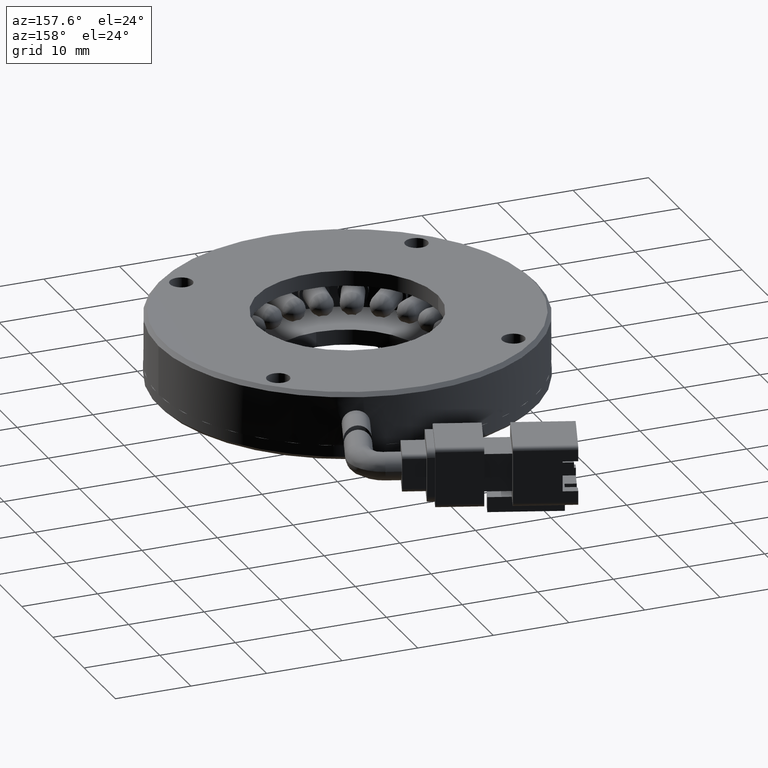
[diagram: clean part render]
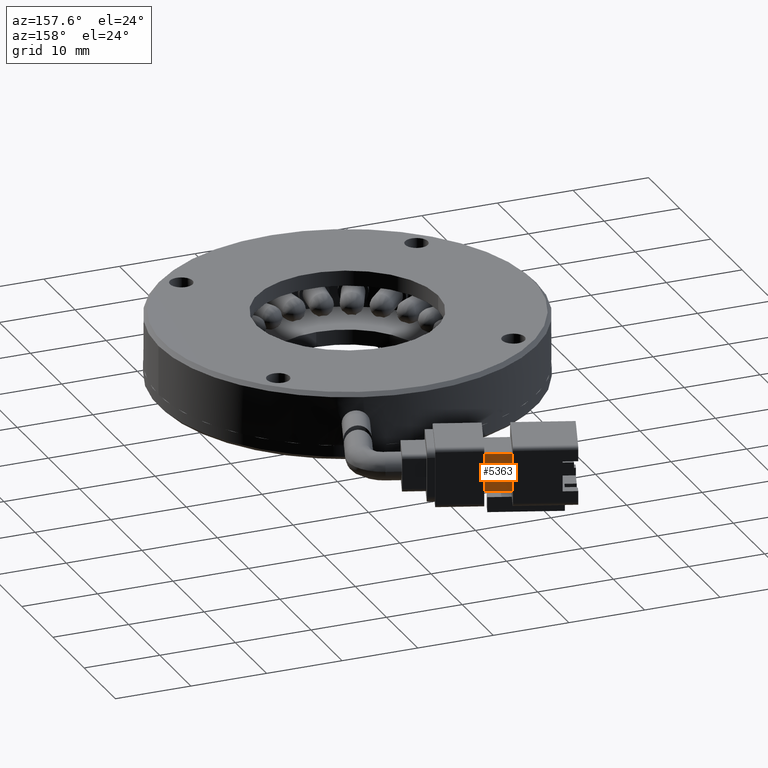
[diagram: same view with one face highlighted and labeled with its STEP entity id]
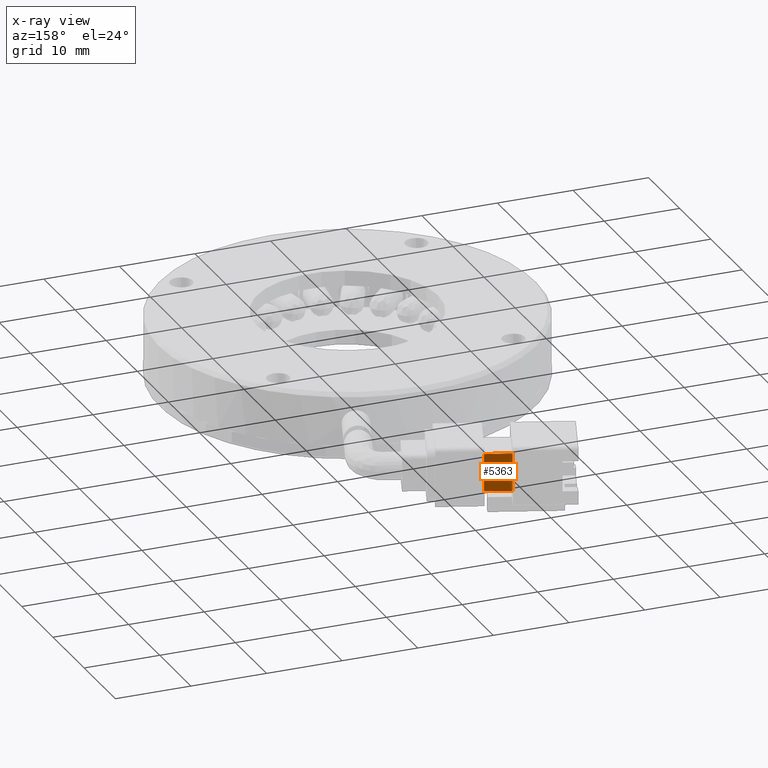
[diagram: x-ray of the same camera — body ghosted, the highlighted face saturated]
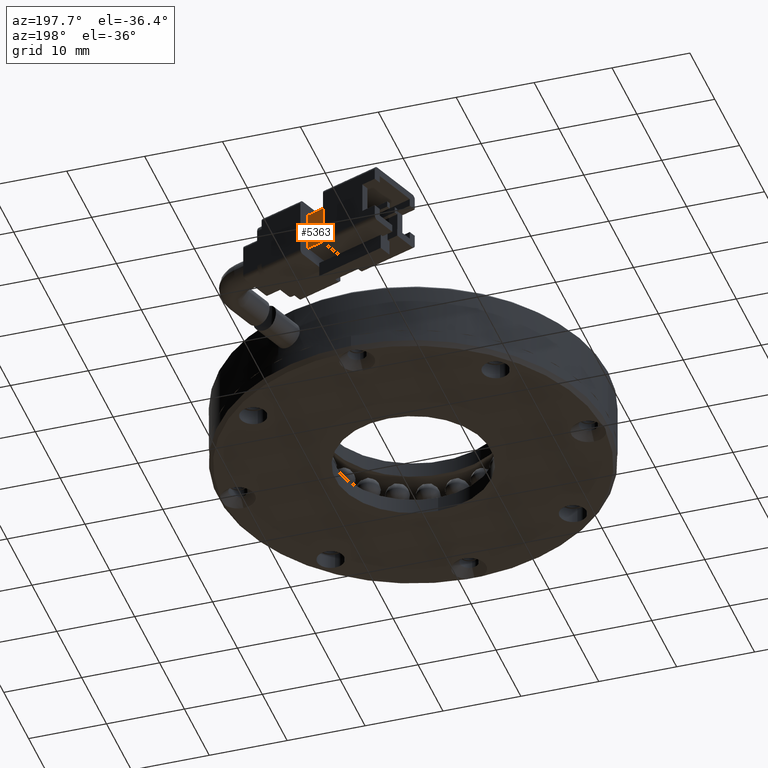
[diagram: same view with one face highlighted and labeled with its STEP entity id]
A machine part, auxiliary view. The second image highlights one B-rep face of the part: STEP entity #5363.
The next image is the same camera in x-ray: the body ghosted, the highlighted face saturated — about 0% of this face is hidden behind the body in this view.
A second angle (auxiliary view) of the same face is appended — the face is thin or edge-on in the first view.
In plain terms, the highlighted planar face has unit normal (-0.342, -0.9397, 0).
Its self-contained STEP definition (entity closure, byte-faithful):
#492 = LINE ( 'NONE', #16759, #18695 ) ;
#531 = EDGE_CURVE ( 'NONE', #4338, #12506, #739, .T. ) ;
#739 = LINE ( 'NONE', #9962, #10946 ) ;
#2364 = ORIENTED_EDGE ( 'NONE', *, *, #8719, .T. ) ;
#2950 = FACE_OUTER_BOUND ( 'NONE', #5348, .T. ) ;
#3963 = DIRECTION ( 'NONE',  ( 1.349179610668658200E-016, 4.607655505393118400E-017, 1.000000000000000000 ) ) ;
#4338 = VERTEX_POINT ( 'NONE', #6745 ) ;
#4698 = CARTESIAN_POINT ( 'NONE',  ( -124.5516112334184100, 50.81619827226441500, -2.999999999999930700 ) ) ;
#5197 = EDGE_CURVE ( 'NONE', #13494, #10506, #13334, .T. ) ;
#5348 = EDGE_LOOP ( 'NONE', ( #2364, #15798, #8304, #5422 ) ) ;
#5363 = ADVANCED_FACE ( 'NONE', ( #2950 ), #14743, .F. ) ;
#5422 = ORIENTED_EDGE ( 'NONE', *, *, #5197, .F. ) ;
#6569 = DIRECTION ( 'NONE',  ( -0.9396926207859084300, 0.3420201433256689900, 1.110223024625157000E-016 ) ) ;
#6745 = CARTESIAN_POINT ( 'NONE',  ( -124.5516112334184000, 50.81619827226444400, 2.000000000000075500 ) ) ;
#8304 = ORIENTED_EDGE ( 'NONE', *, *, #11958, .F. ) ;
#8719 = EDGE_CURVE ( 'NONE', #13494, #12506, #19511, .T. ) ;
#9962 = CARTESIAN_POINT ( 'NONE',  ( -124.5516112334183700, 50.81619827226445800, -3.999999999999934300 ) ) ;
#10506 = VERTEX_POINT ( 'NONE', #17192 ) ;
#10716 = CARTESIAN_POINT ( 'NONE',  ( -124.5516112334184300, 50.81619827226440800, -2.999999999999935200 ) ) ;
#10946 = VECTOR ( 'NONE', #14086, 1000.000000000000000 ) ;
#11271 = VECTOR ( 'NONE', #3963, 1000.000000000000000 ) ;
#11958 = EDGE_CURVE ( 'NONE', #10506, #4338, #492, .T. ) ;
#12506 = VERTEX_POINT ( 'NONE', #4698 ) ;
#12769 = DIRECTION ( 'NONE',  ( -0.9396926207859084300, 0.3420201433256689900, 1.110223024625157000E-016 ) ) ;
#13334 = LINE ( 'NONE', #14242, #11271 ) ;
#13494 = VERTEX_POINT ( 'NONE', #18756 ) ;
#14086 = DIRECTION ( 'NONE',  ( -2.333578247978733300E-016, 2.116735384756109300E-018, -1.000000000000000000 ) ) ;
#14242 = CARTESIAN_POINT ( 'NONE',  ( -121.2626870606677700, 49.61912777062457300, -2.999999999999935200 ) ) ;
#14743 = PLANE ( 'NONE',  #16009 ) ;
#15798 = ORIENTED_EDGE ( 'NONE', *, *, #531, .F. ) ;
#16009 = AXIS2_PLACEMENT_3D ( 'NONE', #10716, #24962, #12769 ) ;
#16759 = CARTESIAN_POINT ( 'NONE',  ( -124.5516112334184300, 50.81619827226440800, 2.000000000000062600 ) ) ;
#17192 = CARTESIAN_POINT ( 'NONE',  ( -121.2626870606677300, 49.61912777062458700, 2.000000000000071100 ) ) ;
#17925 = CARTESIAN_POINT ( 'NONE',  ( -124.5516112334184400, 50.81619827226440100, -2.999999999999918700 ) ) ;
#18695 = VECTOR ( 'NONE', #6569, 999.9999999999998900 ) ;
#18756 = CARTESIAN_POINT ( 'NONE',  ( -121.2626870606677600, 49.61912777062455900, -2.999999999999926300 ) ) ;
#19511 = LINE ( 'NONE', #17925, #24899 ) ;
#19982 = DIRECTION ( 'NONE',  ( -0.9396926207859083200, 0.3420201433256692100, 2.036012820142073300E-018 ) ) ;
#24899 = VECTOR ( 'NONE', #19982, 999.9999999999998900 ) ;
#24962 = DIRECTION ( 'NONE',  ( -0.3420201433256689900, -0.9396926207859084300, 8.944245915671127200E-017 ) ) ;